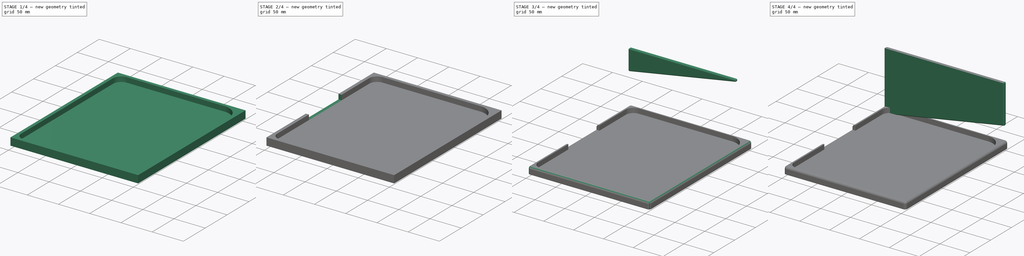
[diagram: build sequence overview — one tinted view per stage of 4, left to right]
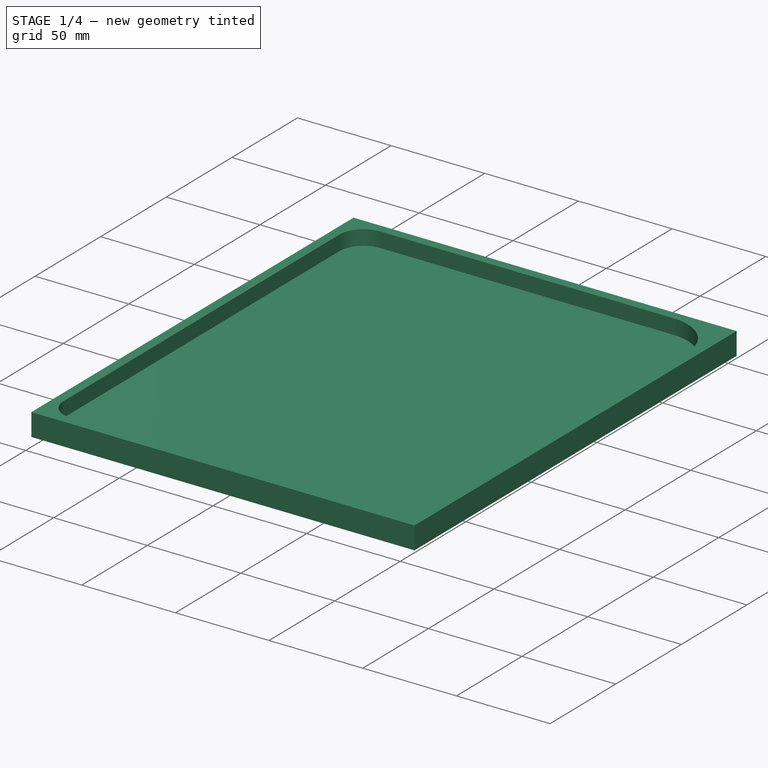
[diagram: stage 1 of 4 — iso view after this stage's code; geometry added in this stage tinted green]
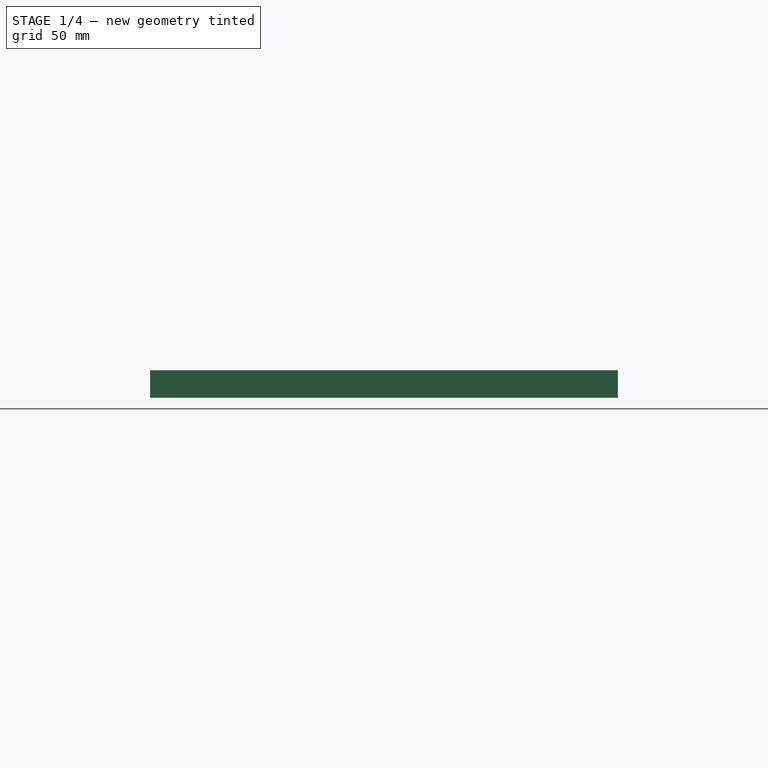
[diagram: stage 1 of 4 — front view after this stage's code; geometry added in this stage tinted green]
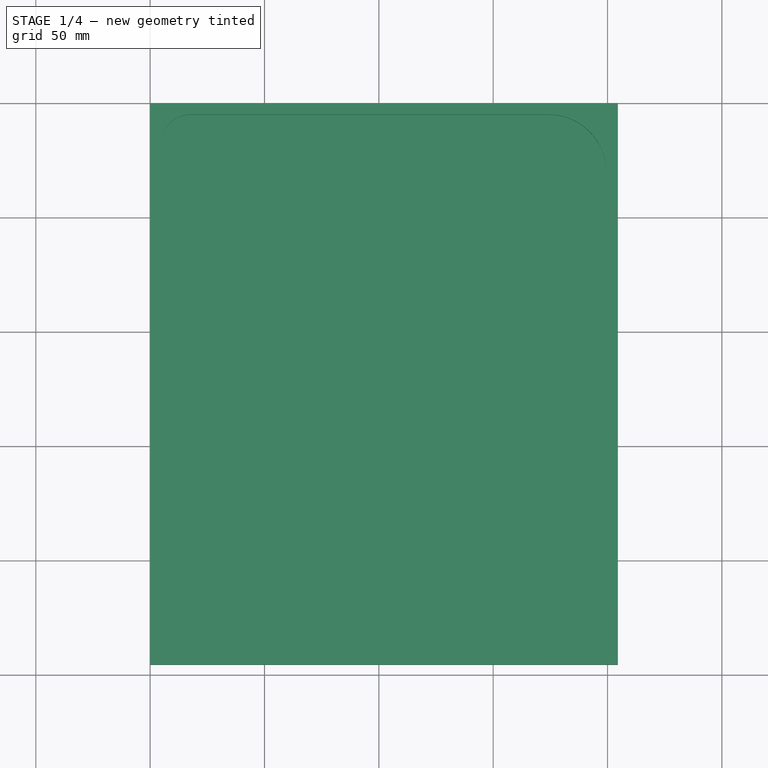
[diagram: stage 1 of 4 — top view after this stage's code; geometry added in this stage tinted green]
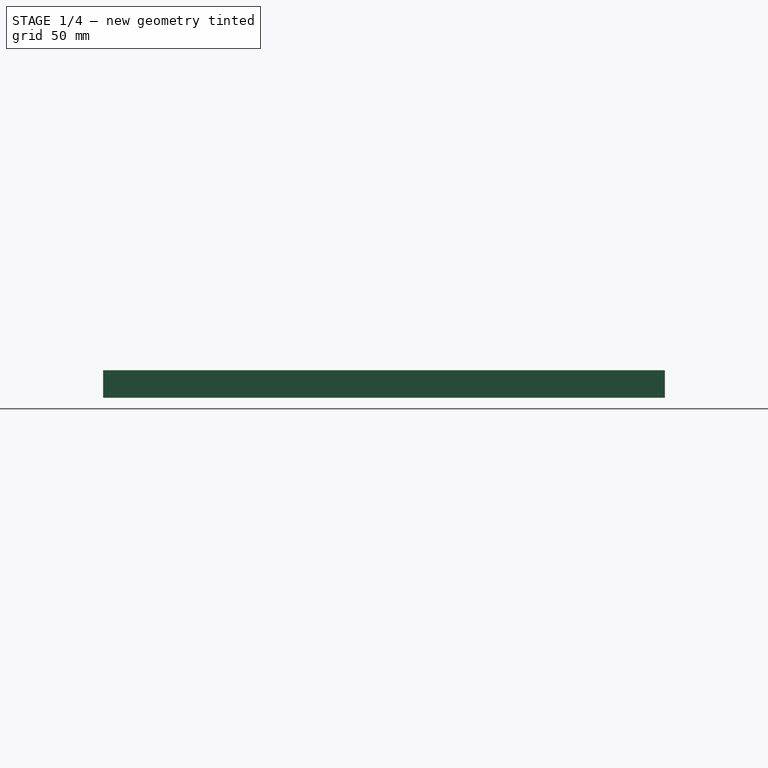
[diagram: stage 1 of 4 — right view after this stage's code; geometry added in this stage tinted green]
FCSTD DOCUMENT  (FreeCAD 0.21RUnknown)
Label: ps-ohk-rh-enclosure
License: All rights reserved
LicenseURL: http://en.wikipedia.org/wiki/All_rights_reserved
objects: Sketcher::SketchObject×9, PartDesign::Pocket×6, PartDesign::Fillet×4, PartDesign::Pad×3, PartDesign::Body×3, Spreadsheet::Sheet×1
note: 38 computed .brp shape members not serialized (recipe doc carries the construction recipe); baked Part::Feature solids carry a one-line shape summary decoded from their .brp

FEATURE [Sketcher::SketchObject] Sketch  label="Base Sk"
  FullyConstrained = true
  MapMode = 5
  Support = -> [XY_Plane]
  expr: Constraints[2] = <<p>>.wall_thickness * 2 + Spreadsheet.pcb_tl_corn_rad + <<p>>.pcb_long_height + <<p>>.buffer + <<p>>.pcb_bl_corn_rad
  expr: Constraints[5] = <<p>>.wall_thickness * 2 + <<p>>.pcb_width + <<p>>.pcb_tl_corn_rad + Spreadsheet.pcb_tr_rad + <<p>>.buffer * 2
  sketch-geometry (4):
    g0: LineSegment StartX=0 StartY=0 StartZ=0 EndX=0 EndY=-245.616 EndZ=0
    g1: LineSegment StartX=0 StartY=0 StartZ=0 EndX=204.5 EndY=0 EndZ=0
    g2: LineSegment StartX=204.5 StartY=0 StartZ=0 EndX=204.5 EndY=-245.616 EndZ=0
    g3: LineSegment StartX=0 StartY=-245.616 StartZ=0 EndX=204.5 EndY=-245.616 EndZ=0
  constraints (11):
    c: Coincident(g0,g-1)
    c: Vertical(g0)
    c: DistanceY(g0,g0) = 245.616
    c: Coincident(g1,g0)
    c: PointOnObject(g1,g-1)
    c: DistanceX(g1,g1) = 204.5
    c: Coincident(g2,g1)
    c: Vertical(g2)
    c: Coincident(g3,g0)
    c: Coincident(g3,g2)
    c: Horizontal(g3)
FEATURE [Spreadsheet::Sheet] Spreadsheet  label="p"
  cells = A1='PCB; C1='Design; E1='Wrist Pad; A2(pcb_width)==152.4 mm; C2(buffer)==2 mm; E2(pad_width)==80 mm; A3(pcb_short_height)==158 mm; C3(wall_thickness)==5 mm; E3(pad_height)==50 mm; A4(pcb_hook_width)==45.72 mm; C4(height)==12 mm; A5(pcb_short_width)==81.28 mm; C5(base_height)==0 mm; A6(pcb_long_height)==208.216 mm; C6(angle)==170 deg; A7(pcb_tl_corn_rad)==12.7 mm; A8(pcb_tr_rad)==25.4 mm; C8='Peg; A9(pcb_br_corn1_rad)==25.4 mm; C9(slot_thickness)==5 mm; A10(pcb_br_corn2_rad)==25.4 mm; C10(peg_height)==100 mm; A11(pcb_br_corn3_rad)==10.16 mm; A12(pcb_bl_corn_rad)==12.7 mm; A13(pcb_depth)==8 mm
FEATURE [PartDesign::Pad] Pad  label="Base Pad"
  Direction = (0,0,1)
  Length = 12
  Length2 = 10
  Profile = -> Sketch
  ReferenceAxis = -> Sketch [N_Axis]
  Type = 0
  expr: Length = <<p>>.height + <<p>>.base_height
FEATURE [Sketcher::SketchObject] Sketch001  label="Keyboard Sk"
  FullyConstrained = true
  MapMode = 5
  Placement = pos=(0,0,12) rot=(0,0,1;0rad)
  Support = -> [Pad]
  expr: Constraints[0] = <<p>>.pcb_tl_corn_rad
  expr: Constraints[10] = <<p>>.pcb_tr_rad
  expr: Constraints[13] = <<p>>.pcb_short_height
  expr: Constraints[16] = <<p>>.pcb_long_height + <<p>>.buffer
  expr: Constraints[19] = <<p>>.pcb_bl_corn_rad
  expr: Constraints[22] = <<p>>.pcb_short_width + <<p>>.buffer
  expr: Constraints[25] = 0
  expr: Constraints[26] = <<p>>.pcb_br_corn1_rad
  expr: Constraints[29] = <<p>>.pcb_hook_width + <<p>>.buffer
  expr: Constraints[2] = <<p>>.pcb_width + <<p>>.buffer * 2
  expr: Constraints[37] = <<p>>.pcb_br_corn2_rad - <<p>>.pcb_br_corn3_rad
  expr: Constraints[38] = <<p>>.wall_thickness
  expr: Constraints[3] = <<p>>.wall_thickness
  sketch-geometry (11):
    g0: ArcOfCircle CenterX=17.7 CenterY=-17.7 CenterZ=0 NormalX=0 NormalY=0 NormalZ=1 AngleXU=0 Radius=12.7 StartAngle=1.5708 EndAngle=3.14159
    g1: LineSegment StartX=17.7 StartY=-5 StartZ=0 EndX=174.1 EndY=-5 EndZ=0
    g2: ArcOfCircle CenterX=174.1 CenterY=-30.4 CenterZ=0 NormalX=0 NormalY=0 NormalZ=1 AngleXU=0 Radius=25.4 StartAngle=0 EndAngle=1.5708
    g3: LineSegment StartX=199.5 StartY=-30.4 StartZ=0 EndX=199.5 EndY=-188.4 EndZ=0
    g4: LineSegment StartX=5 StartY=-17.7 StartZ=0 EndX=5 EndY=-227.916 EndZ=0
    g5: ArcOfCircle CenterX=17.7 CenterY=-227.916 CenterZ=0 NormalX=0 NormalY=0 NormalZ=1 AngleXU=0 Radius=12.7 StartAngle=3.14159 EndAngle=4.71239
    g6: LineSegment StartX=17.7 StartY=-240.616 StartZ=0 EndX=100.98 EndY=-240.616 EndZ=0
    g7: ArcOfCircle CenterX=174.1 CenterY=-188.4 CenterZ=0 NormalX=0 NormalY=0 NormalZ=1 AngleXU=0 Radius=25.4 StartAngle=4.71239 EndAngle=6.28319
    g8: LineSegment StartX=174.1 StartY=-213.8 StartZ=0 EndX=126.38 EndY=-213.8 EndZ=0
    g9: ArcOfCircle CenterX=126.38 CenterY=-229.04 CenterZ=0 NormalX=0 NormalY=0 NormalZ=1 AngleXU=0 Radius=15.24 StartAngle=1.5708 EndAngle=3.14159
    g10: ArcOfCircle CenterX=99.4653 CenterY=-229.04 CenterZ=0 NormalX=0 NormalY=0 NormalZ=1 AngleXU=0 Radius=11.6747 StartAngle=4.8425 EndAngle=6.28319
  constraints (39):
    c: Radius(g0) = 12.7
    c: Coincident(g1,g0)
    c: DistanceX(g1,g1) = 156.4
    c: DistanceX(g-1,g0) = 5
    c: DistanceX(g0,g0) = 0
    c: DistanceY(g0,g0) = 0
    c: Horizontal(g1)
    c: Coincident(g2,g1)
    c: DistanceX(g1,g2) = 0
    c: DistanceY(g2,g2) = 0
    c: Radius(g2) = 25.4
    c: Coincident(g3,g2)
    c: Vertical(g3)
    c: DistanceY(g3,g3) = 158
    c: Coincident(g4,g0)
    c: Vertical(g4)
    c: DistanceY(g4,g4) = 210.216
    c: Coincident(g5,g4)
    c: DistanceY(g4,g5) = 0
    c: Radius(g5) = 12.7
    c: Coincident(g6,g5)
    c: Horizontal(g6)
    c: DistanceX(g6,g6) = 83.28
    c: DistanceX(g5,g5) = 0
    c: Coincident(g7,g3)
    c: DistanceY(g7,g3) = 0
    c: Radius(g7) = 25.4
    c: Coincident(g8,g7)
    c: Horizontal(g8)
    c: DistanceX(g8,g8) = 47.72
    c: DistanceX(g7,g7) = 0
    c: Coincident(g9,g8)
    c: Coincident(g10,g9)
    c: Coincident(g10,g6)
    c: DistanceX(g9,g8) = 0
    c: DistanceY(g9,g9) = 0
    c: DistanceY(g10,g9) = 0
    c: Radius(g9) = 15.24
    c: DistanceY(g0,g-1) = 5
FEATURE [PartDesign::Pocket] Pocket  label="Keyboard Pocket"
  BaseFeature = -> Pad
  Direction = (0,0,-1)
  Length = 8
  Length2 = 5
  Profile = -> Sketch001
  ReferenceAxis = -> Sketch001 [N_Axis]
  Type = 0
  expr: Length = <<p>>.pcb_depth
FEATURE [Sketcher::SketchObject] Sketch002  label="Slot Sk"
  FullyConstrained = true
  MapMode = 5
  Placement = pos=(0,0,0) rot=(1,0,0;3.14159rad)
  expr: Constraints[10] = <<p>>.wall_thickness * 2 + <<p>>.pcb_width + <<p>>.pcb_tl_corn_rad + Spreadsheet.pcb_tr_rad
  expr: Constraints[11] = <<p>>.buffer + 5 mm
  expr: Constraints[8] = <<p>>.buffer
  expr: Constraints[9] = <<p>>.slot_thickness + 2 mm
  sketch-geometry (4):
    g0: LineSegment StartX=2 StartY=14 StartZ=0 EndX=202.5 EndY=14 EndZ=0
    g1: LineSegment StartX=202.5 StartY=14 StartZ=0 EndX=202.5 EndY=7 EndZ=0
    g2: LineSegment StartX=202.5 StartY=7 StartZ=0 EndX=2 EndY=7 EndZ=0
    g3: LineSegment StartX=2 StartY=7 StartZ=0 EndX=2 EndY=14 EndZ=0
  constraints (12):
    c: Coincident(g0,g1)
    c: Coincident(g1,g2)
    c: Coincident(g2,g3)
    c: Coincident(g3,g0)
    c: Horizontal(g0)
    c: Horizontal(g2)
    c: Vertical(g1)
    c: Vertical(g3)
    c: DistanceX(g-1,g0) = 2
    c: DistanceY(g3,g3) = 7
    c: DistanceX(g0,g0) = 200.5
    c: DistanceY(g-1,g2) = 7
FEATURE [PartDesign::Pocket] Pocket001  label="Slot Pocket"
  BaseFeature = -> Pocket
  Direction = (0,0,1)
  Length = 3
  Length2 = 5
  Profile = -> Sketch002
  ReferenceAxis = -> Sketch002 [N_Axis]
  Type = 0
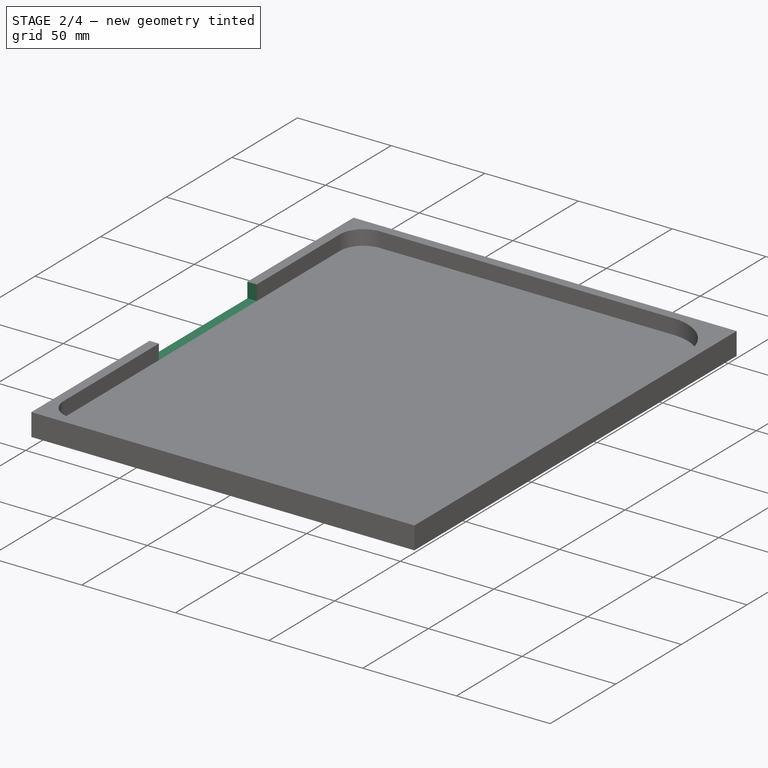
[diagram: stage 2 of 4 — iso view after this stage's code; geometry added in this stage tinted green]
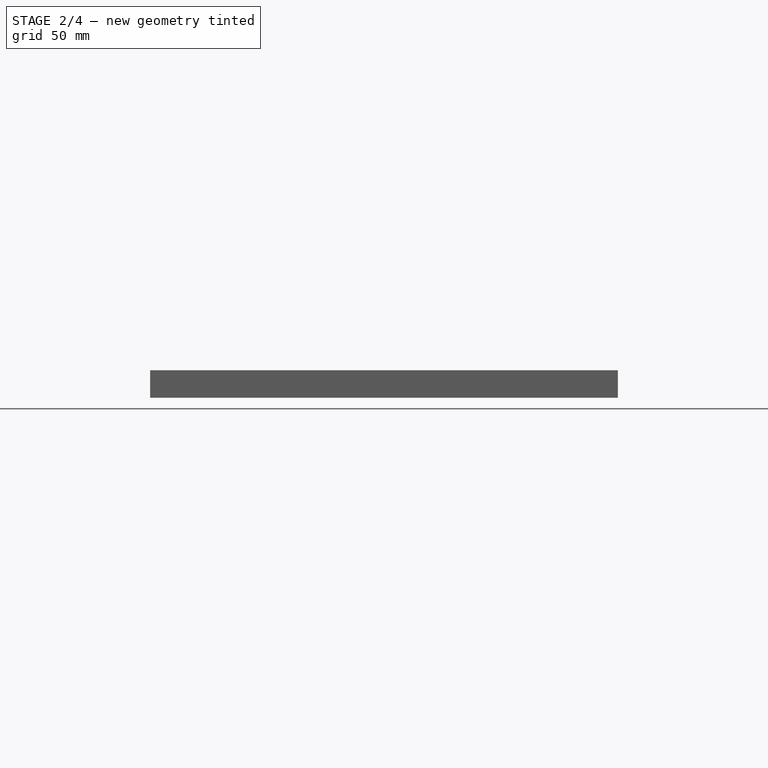
[diagram: stage 2 of 4 — front view after this stage's code; geometry added in this stage tinted green]
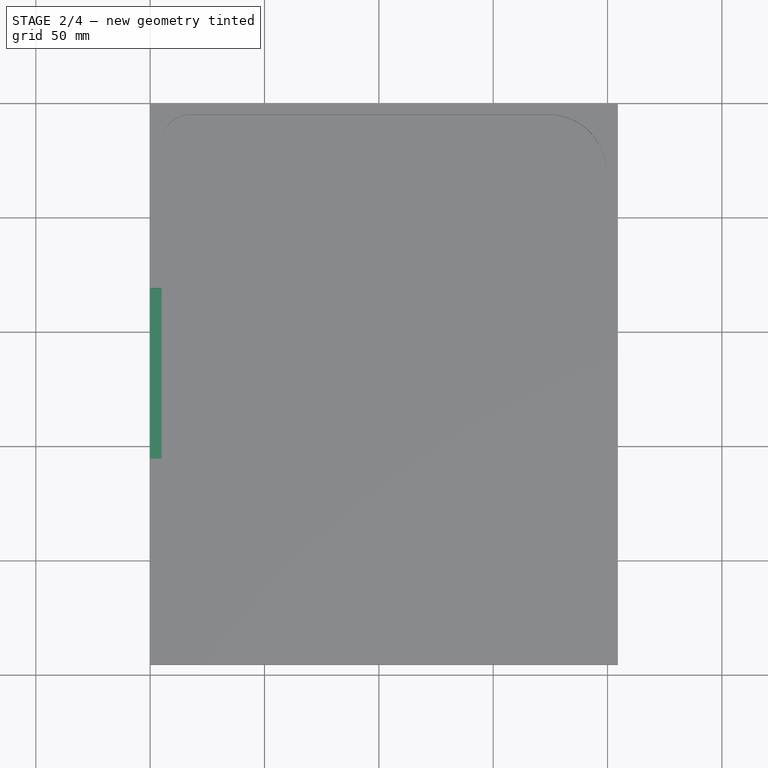
[diagram: stage 2 of 4 — top view after this stage's code; geometry added in this stage tinted green]
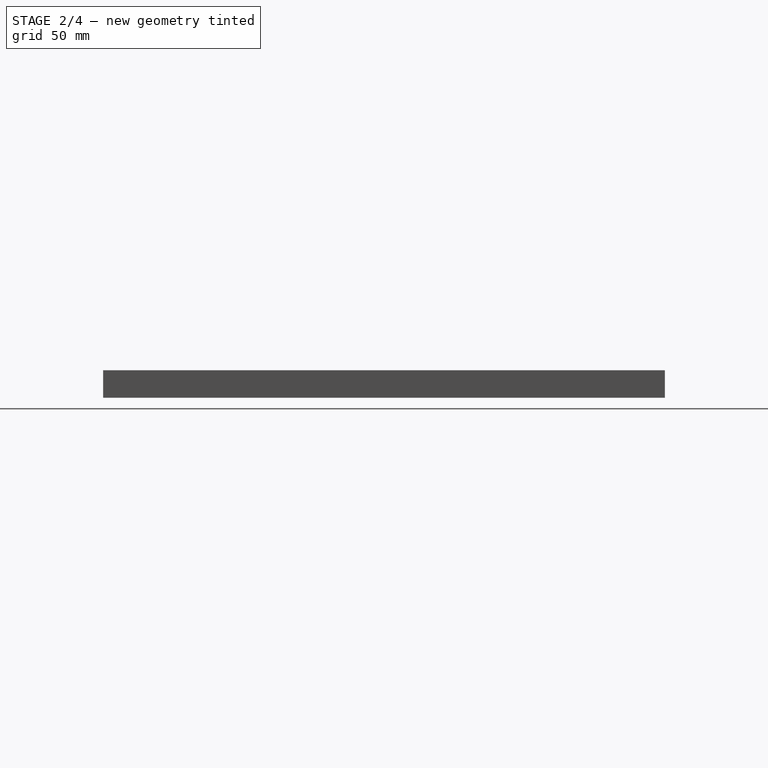
[diagram: stage 2 of 4 — right view after this stage's code; geometry added in this stage tinted green]
FEATURE [PartDesign::Body] Body001  label="Peg"
  Group = -> [Sketch003,Pad001,Sketch004,Pocket002,Fillet001]
  Origin = -> Origin001
  Placement = pos=(0,0,-100) rot=(0,0,1;0rad)
  Tip = -> Fillet001
FEATURE [Sketcher::SketchObject] Sketch005  label="Usb Sk"
  FullyConstrained = false
  MapMode = 5
  Placement = pos=(0,0,12) rot=(0,0,1;0rad)
  Support = -> [Pocket001]
  sketch-geometry (4):
    g0: LineSegment StartX=-37.7909 StartY=-80.9197 StartZ=0 EndX=40.1935 EndY=-80.9197 EndZ=0
    g1: LineSegment StartX=40.1935 StartY=-80.9197 StartZ=0 EndX=40.1935 EndY=-155.53 EndZ=0
    g2: LineSegment StartX=40.1935 StartY=-155.53 StartZ=0 EndX=-37.7909 EndY=-155.53 EndZ=0
    g3: LineSegment StartX=-37.7909 StartY=-155.53 StartZ=0 EndX=-37.7909 EndY=-80.9197 EndZ=0
  constraints (8):
    c: Coincident(g0,g1)
    c: Coincident(g1,g2)
    c: Coincident(g2,g3)
    c: Coincident(g3,g0)
    c: Horizontal(g0)
    c: Horizontal(g2)
    c: Vertical(g1)
    c: Vertical(g3)
FEATURE [PartDesign::Pocket] Pocket003  label="Usb Pocket"
  BaseFeature = -> Pocket001
  Direction = (0,0,-1)
  Length = 8
  Length2 = 5
  Profile = -> Sketch005
  ReferenceAxis = -> Sketch005 [N_Axis]
  Type = 0
FEATURE [Sketcher::SketchObject] Sketch006  label="Slot 2 Sk"
  FullyConstrained = true
  MapMode = 5
  Placement = pos=(0,0,0) rot=(1,0,0;3.14159rad)
  expr: Constraints[10] = <<p>>.wall_thickness * 2 + <<p>>.pcb_width + <<p>>.pcb_tl_corn_rad + <<p>>.pcb_tr_rad
  expr: Constraints[11] = <<p>>.buffer + <<p>>.pcb_long_height + 20 mm
  expr: Constraints[8] = <<p>>.buffer
  expr: Constraints[9] = <<p>>.slot_thickness + 2 mm
  sketch-geometry (4):
    g0: LineSegment StartX=2 StartY=237.216 StartZ=0 EndX=202.5 EndY=237.216 EndZ=0
    g1: LineSegment StartX=202.5 StartY=237.216 StartZ=0 EndX=202.5 EndY=230.216 EndZ=0
    g2: LineSegment StartX=202.5 StartY=230.216 StartZ=0 EndX=2 EndY=230.216 EndZ=0
    g3: LineSegment StartX=2 StartY=230.216 StartZ=0 EndX=2 EndY=237.216 EndZ=0
  constraints (12):
    c: Coincident(g0,g1)
    c: Coincident(g1,g2)
    c: Coincident(g2,g3)
    c: Coincident(g3,g0)
    c: Horizontal(g0)
    c: Horizontal(g2)
    c: Vertical(g1)
    c: Vertical(g3)
    c: DistanceX(g-1,g0) = 2
    c: DistanceY(g3,g3) = 7
    c: DistanceX(g0,g0) = 200.5
    c: DistanceY(g-1,g2) = 230.216
FEATURE [PartDesign::Fillet] Fillet003  label="Fillet"
  Base = -> Pocket003
  BaseFeature = -> Pocket003
  Radius = 2
  SupportTransform = false
  UseAllEdges = false
FEATURE [PartDesign::Pocket] Pocket004  label="Slot 2 Pocket"
  BaseFeature = -> Fillet003
  Direction = (0,0,1)
  Length = 3
  Length2 = 5
  Profile = -> Sketch006
  ReferenceAxis = -> Sketch006 [N_Axis]
  Type = 0
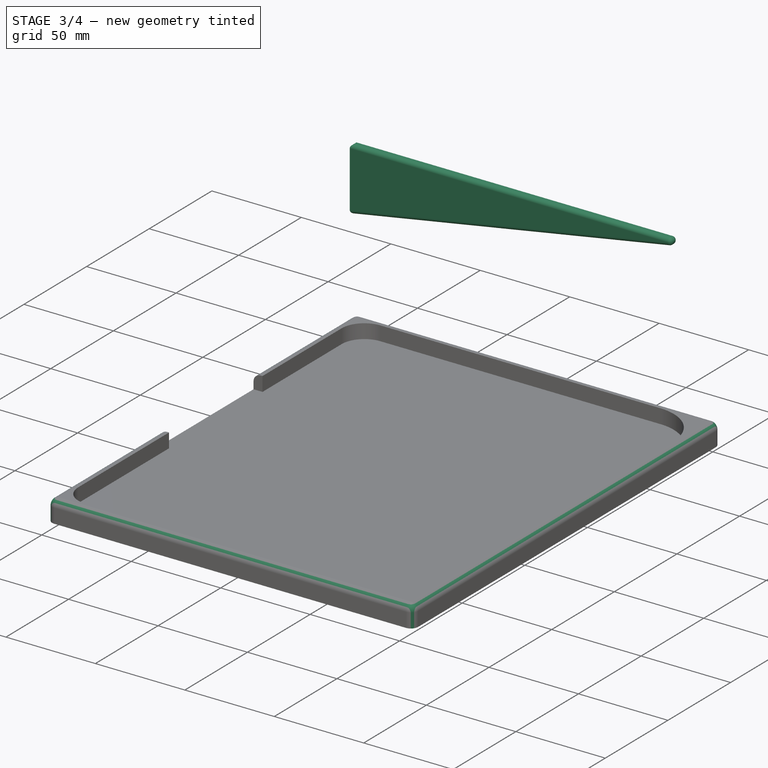
[diagram: stage 3 of 4 — iso view after this stage's code; geometry added in this stage tinted green]
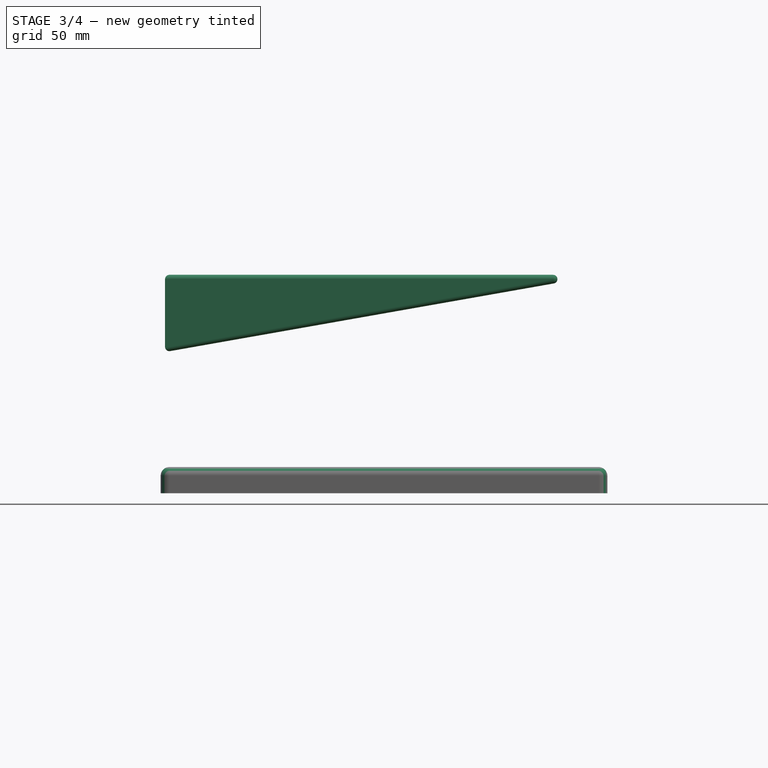
[diagram: stage 3 of 4 — front view after this stage's code; geometry added in this stage tinted green]
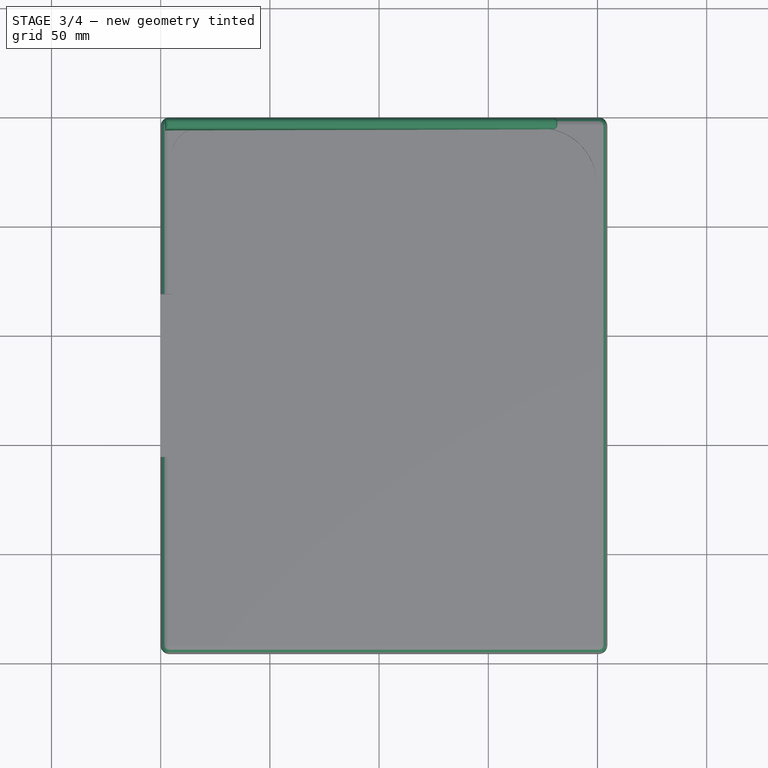
[diagram: stage 3 of 4 — top view after this stage's code; geometry added in this stage tinted green]
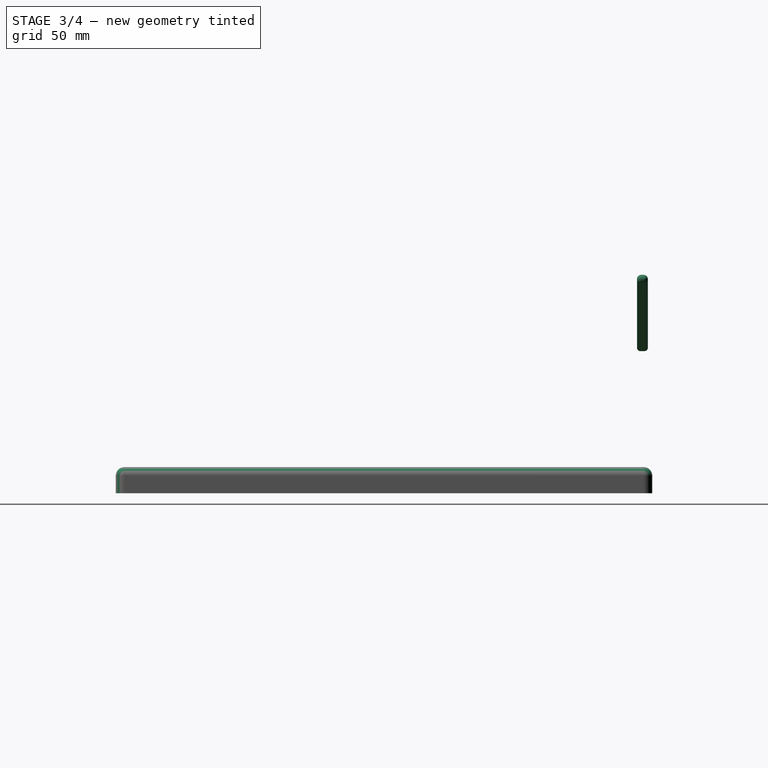
[diagram: stage 3 of 4 — right view after this stage's code; geometry added in this stage tinted green]
FEATURE [Sketcher::SketchObject] Sketch007  label="Btm Peg  Base Sk"
  FullyConstrained = true
  MapMode = 5
  Support = -> [XY_Plane002]
  expr: Constraints[10] = <<p>>.slot_thickness
  expr: Constraints[11] = <<p>>.wall_thickness * 2 + <<p>>.pcb_width + <<p>>.pcb_tl_corn_rad + Spreadsheet.pcb_tr_rad
  expr: Constraints[8] = <<p>>.buffer
  expr: Constraints[9] = <<p>>.buffer
  sketch-geometry (4):
    g0: LineSegment StartX=2 StartY=-2 StartZ=0 EndX=202.5 EndY=-2 EndZ=0
    g1: LineSegment StartX=202.5 StartY=-2 StartZ=0 EndX=202.5 EndY=-7 EndZ=0
    g2: LineSegment StartX=202.5 StartY=-7 StartZ=0 EndX=2 EndY=-7 EndZ=0
    g3: LineSegment StartX=2 StartY=-7 StartZ=0 EndX=2 EndY=-2 EndZ=0
  constraints (12):
    c: Coincident(g0,g1)
    c: Coincident(g1,g2)
    c: Coincident(g2,g3)
    c: Coincident(g3,g0)
    c: Horizontal(g0)
    c: Horizontal(g2)
    c: Vertical(g1)
    c: Vertical(g3)
    c: DistanceX(g-1,g0) = 2
    c: DistanceY(g0,g-1) = 2
    c: DistanceY(g3,g3) = 5
    c: DistanceX(g0,g0) = 200.5
FEATURE [PartDesign::Pad] Pad002  label="Btm Peg Base Pad"
  Direction = (0,0,1)
  Length = 100
  Length2 = 10
  Profile = -> Sketch007
  ReferenceAxis = -> Sketch007 [N_Axis]
  Type = 0
  expr: Length = <<p>>.peg_height
FEATURE [Sketcher::SketchObject] Sketch008  label="Btm Slant Sk"
  FullyConstrained = true
  MapMode = 5
  Placement = pos=(0,-2,0) rot=(0,0.707107,0.707107;3.14159rad)
  Support = -> [Pad002]
  expr: Constraints[0] = <<p>>.buffer
  expr: Constraints[1] = <<p>>.angle
  expr: Constraints[2] = <<p>>.wall_thickness * 2 + <<p>>.pcb_width + <<p>>.pcb_tl_corn_rad + Spreadsheet.pcb_tr_rad
  sketch-geometry (4):
    g0: LineSegment StartX=-2 StartY=64.6464 StartZ=0 EndX=-202.5 EndY=100 EndZ=0
    g1: LineSegment StartX=-202.5 StartY=0 StartZ=0 EndX=-202.5 EndY=100 EndZ=0
    g2: LineSegment StartX=-2 StartY=64.6464 StartZ=0 EndX=-2 EndY=0 EndZ=0
    g3: LineSegment StartX=-202.5 StartY=0 StartZ=0 EndX=-2 EndY=0 EndZ=0
  constraints (12):
    c: DistanceX(g0,g-1) = 2
    c: Angle(g-1,g0) = 2.96706
    c: DistanceX(g1,g0) = 200.5
    c: Coincident(g1,g0)
    c: Vertical(g1)
    c: Coincident(g2,g0)
    c: Vertical(g2)
    c: DistanceY(g-1,g2) = 0
    c: DistanceY(g1,g1) = 100
    c: Coincident(g3,g1)
    c: Coincident(g3,g2)
    c: Horizontal(g3)
FEATURE [PartDesign::Pocket] Pocket005  label="Btm Slant Pocket"
  BaseFeature = -> Pad002
  Direction = (0,-1,2e-16)
  Length = 7
  Length2 = 5
  Profile = -> Sketch008
  ReferenceAxis = -> Sketch008 [N_Axis]
  Type = 0
FEATURE [PartDesign::Fillet] Fillet004  label="Btm Peg Fillet"
  Base = -> Pocket005 [Edge4,Edge1,Edge5,Edge7,Edge6,Edge8,Edge2]
  BaseFeature = -> Pocket005
  Radius = 2
  SupportTransform = false
  UseAllEdges = false
FEATURE [PartDesign::Body] Body002  label="Bottom Peg"
  Group = -> [Sketch007,Pad002,Sketch008,Pocket005,Fillet004]
  Origin = -> Origin002
  Placement = pos=(0,-228,-100) rot=(0,0,1;0rad)
  Tip = -> Fillet004
FEATURE [PartDesign::Fillet] Fillet  label="Fillet001"
  Base = -> Pocket004 [Edge2,Edge20,Edge21,Edge23,Edge3,Edge7,Edge22,Edge43,Edge8]
  BaseFeature = -> Pocket004
  Radius = 4
  SupportTransform = false
  UseAllEdges = false
FEATURE [PartDesign::Body] Body  label="Keyboard Stand"
  Group = -> [Sketch,Pad,Sketch001,Pocket,Sketch002,Pocket001,Sketch005,Pocket003,Sketch006,Fillet003,Pocket004,Fillet]
  Origin = -> Origin
  Tip = -> Fillet
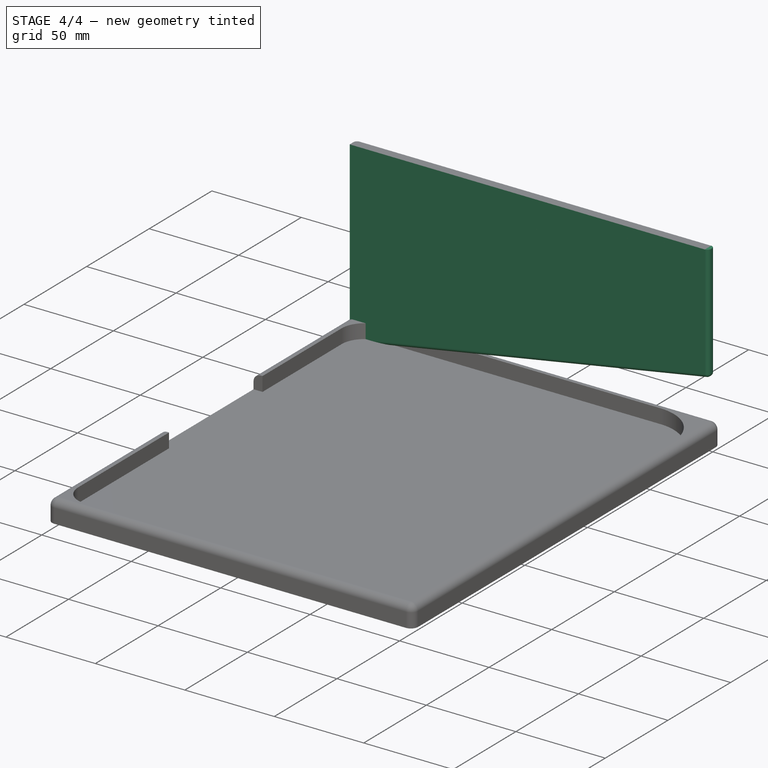
[diagram: stage 4 of 4 — iso view after this stage's code; geometry added in this stage tinted green]
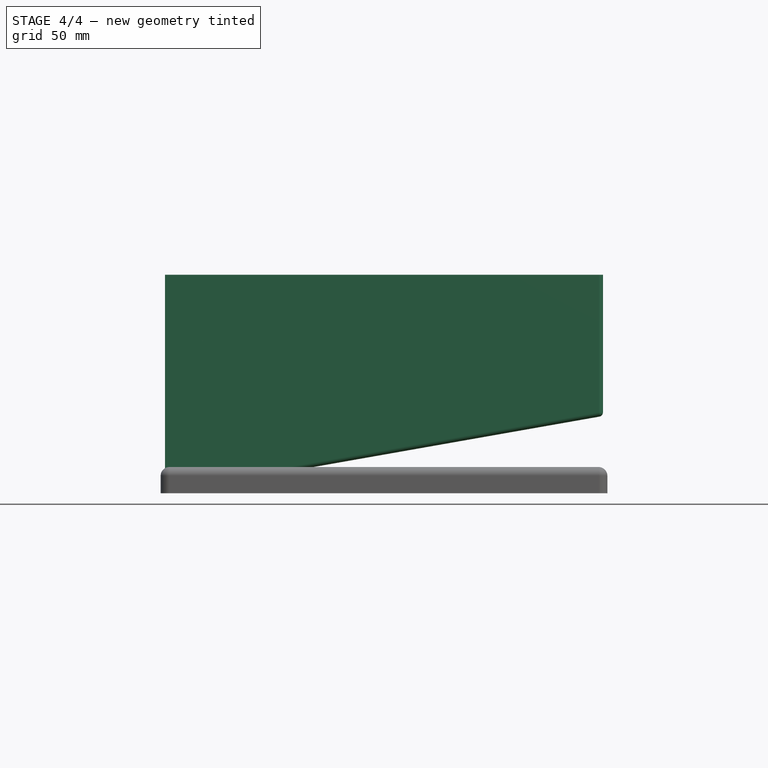
[diagram: stage 4 of 4 — front view after this stage's code; geometry added in this stage tinted green]
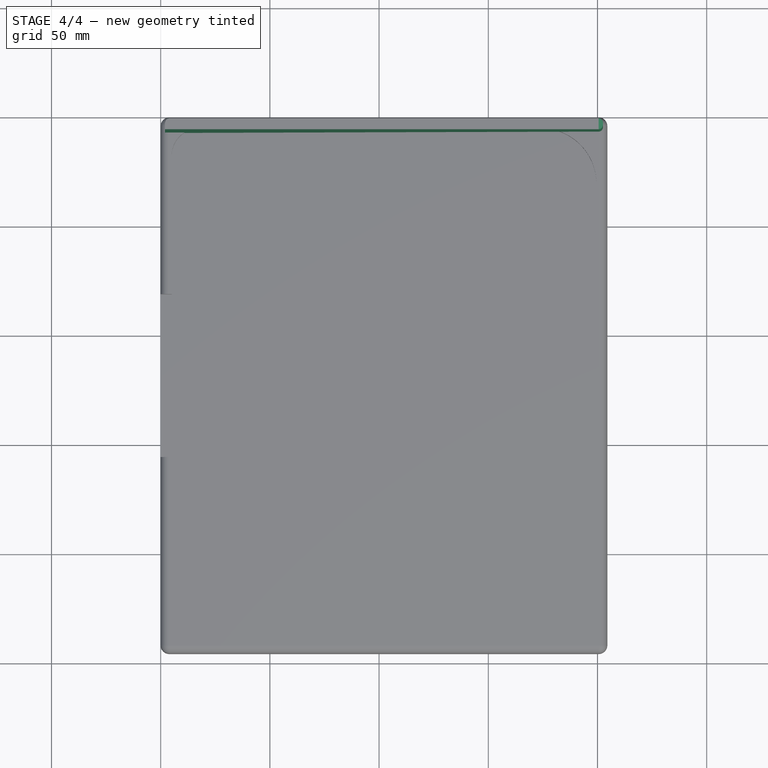
[diagram: stage 4 of 4 — top view after this stage's code; geometry added in this stage tinted green]
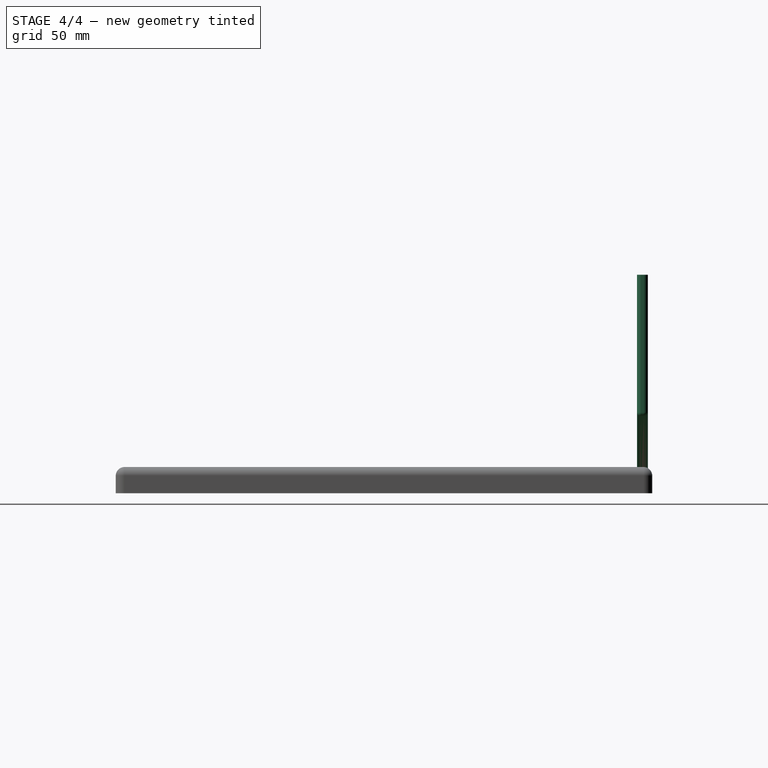
[diagram: stage 4 of 4 — right view after this stage's code; geometry added in this stage tinted green]
FEATURE [Sketcher::SketchObject] Sketch003  label="Peg  Base Sk"
  FullyConstrained = true
  MapMode = 5
  Support = -> [XY_Plane001]
  expr: Constraints[10] = <<p>>.slot_thickness
  expr: Constraints[11] = <<p>>.wall_thickness * 2 + <<p>>.pcb_width + <<p>>.pcb_tl_corn_rad + Spreadsheet.pcb_tr_rad
  expr: Constraints[8] = <<p>>.buffer
  expr: Constraints[9] = <<p>>.buffer
  sketch-geometry (4):
    g0: LineSegment StartX=2 StartY=-2 StartZ=0 EndX=202.5 EndY=-2 EndZ=0
    g1: LineSegment StartX=202.5 StartY=-2 StartZ=0 EndX=202.5 EndY=-7 EndZ=0
    g2: LineSegment StartX=202.5 StartY=-7 StartZ=0 EndX=2 EndY=-7 EndZ=0
    g3: LineSegment StartX=2 StartY=-7 StartZ=0 EndX=2 EndY=-2 EndZ=0
  constraints (12):
    c: Coincident(g0,g1)
    c: Coincident(g1,g2)
    c: Coincident(g2,g3)
    c: Coincident(g3,g0)
    c: Horizontal(g0)
    c: Horizontal(g2)
    c: Vertical(g1)
    c: Vertical(g3)
    c: DistanceX(g-1,g0) = 2
    c: DistanceY(g0,g-1) = 2
    c: DistanceY(g3,g3) = 5
    c: DistanceX(g0,g0) = 200.5
FEATURE [PartDesign::Pad] Pad001  label="Peg Base Pad"
  Direction = (0,0,1)
  Length = 100
  Length2 = 10
  Profile = -> Sketch003
  ReferenceAxis = -> Sketch003 [N_Axis]
  Type = 0
  expr: Length = <<p>>.peg_height
FEATURE [Sketcher::SketchObject] Sketch004  label="Slant Sk"
  FullyConstrained = true
  MapMode = 5
  Placement = pos=(0,-2,0) rot=(0,0.707107,0.707107;3.14159rad)
  Support = -> [Pad001]
  expr: Constraints[1] = <<p>>.buffer
  expr: Constraints[2] = <<p>>.angle
  expr: Constraints[5] = <<p>>.wall_thickness * 2 + <<p>>.pcb_width + <<p>>.pcb_tl_corn_rad + Spreadsheet.pcb_tr_rad
  sketch-geometry (3):
    g0: LineSegment StartX=-2 StartY=0 StartZ=0 EndX=-202.5 EndY=35.3536 EndZ=0
    g1: LineSegment StartX=-2 StartY=0 StartZ=0 EndX=-202.5 EndY=0 EndZ=0
    g2: LineSegment StartX=-202.5 StartY=0 StartZ=0 EndX=-202.5 EndY=35.3536 EndZ=0
  constraints (9):
    c: PointOnObject(g0,g-1)
    c: DistanceX(g0,g-1) = 2
    c: Angle(g-1,g0) = 2.96706
    c: Coincident(g1,g0)
    c: Horizontal(g1)
    c: DistanceX(g1,g1) = 200.5
    c: Coincident(g2,g1)
    c: Coincident(g2,g0)
    c: Vertical(g2)
FEATURE [PartDesign::Pocket] Pocket002  label="Slant Pocket"
  BaseFeature = -> Pad001
  Direction = (0,-1,2e-16)
  Length = 7
  Length2 = 5
  Profile = -> Sketch004
  ReferenceAxis = -> Sketch004 [N_Axis]
  Type = 0
FEATURE [PartDesign::Fillet] Fillet001  label="Peg Fillet"
  Base = -> Pocket002 [Edge4,Edge1,Edge5,Edge7,Edge6,Edge8,Edge2]
  BaseFeature = -> Pocket002
  Radius = 2
  SupportTransform = false
  UseAllEdges = false
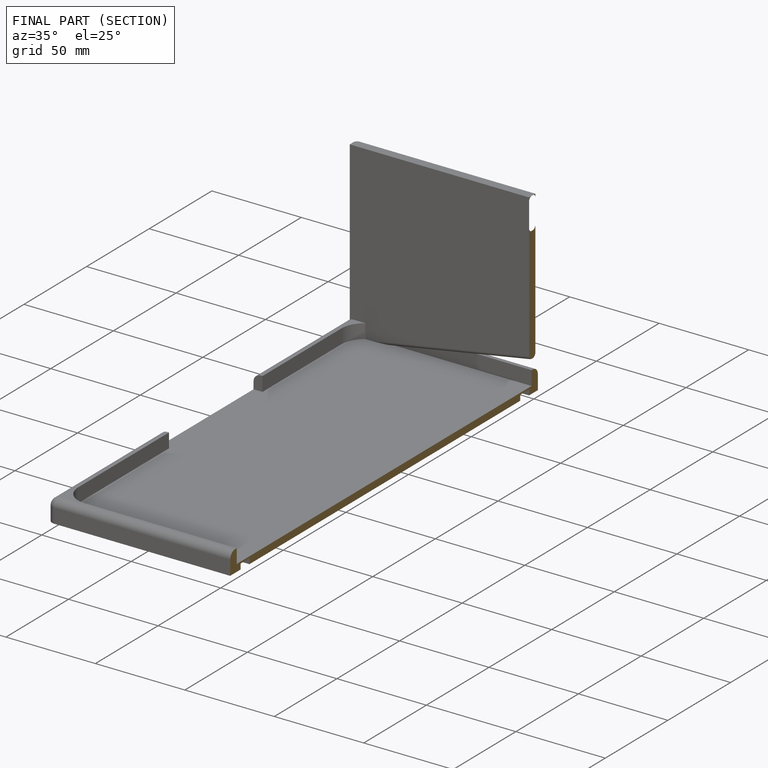
[diagram: finished part — half-section view (interior)]
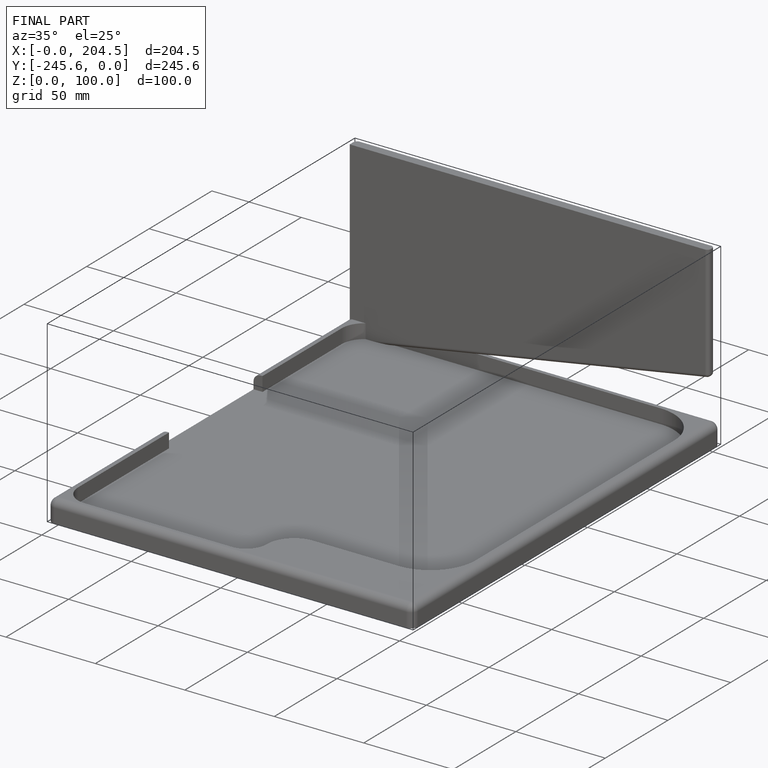
[diagram: finished part — iso view with bounding-box wireframe]
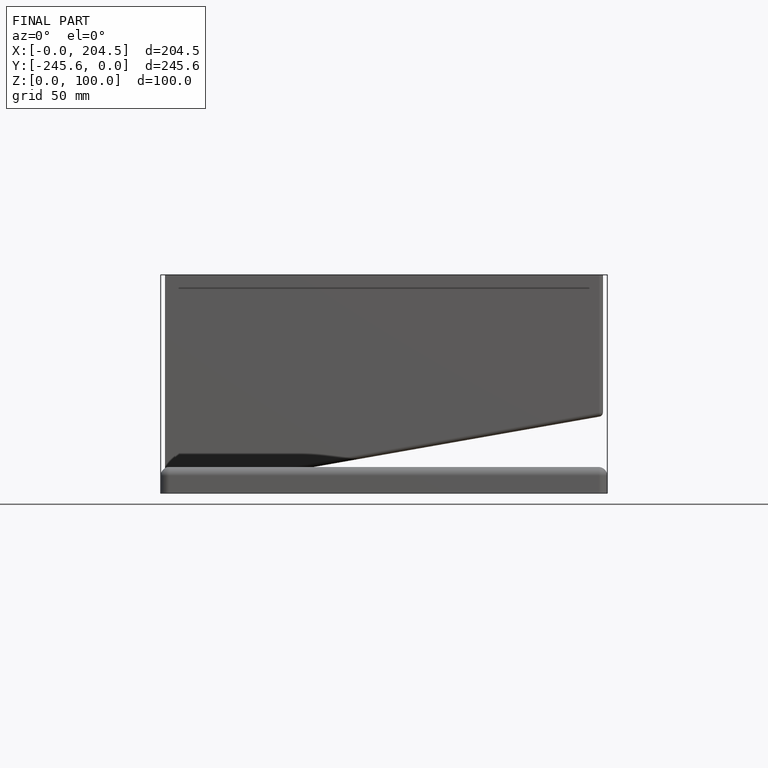
[diagram: finished part — front view with bounding-box wireframe]
